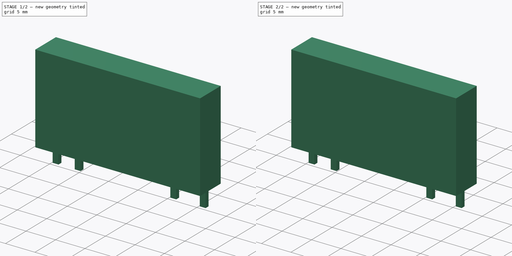
[diagram: build sequence overview — one tinted view per stage of 2, left to right]
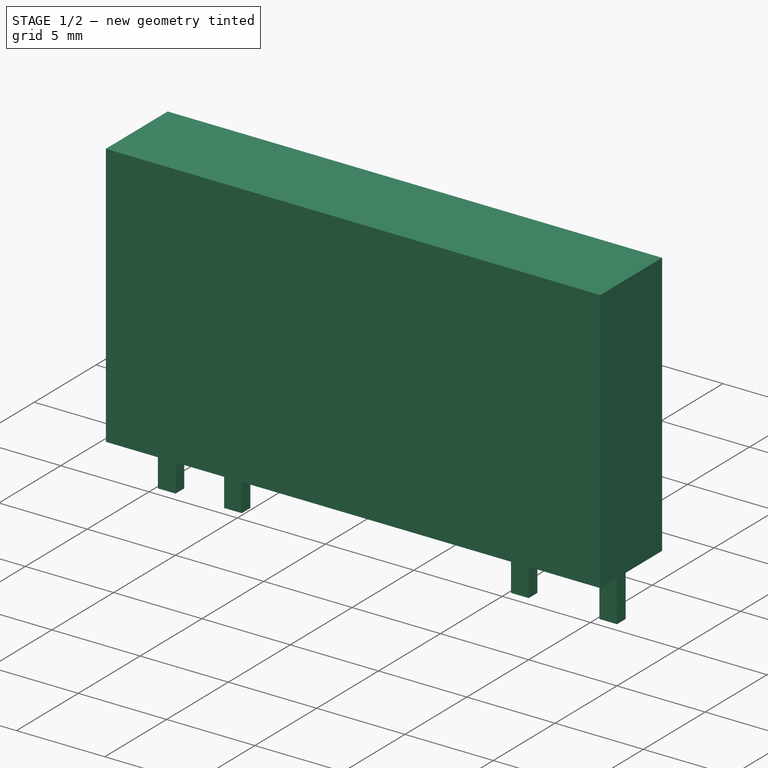
[diagram: stage 1 of 2 — iso view after this stage's code; geometry added in this stage tinted green]
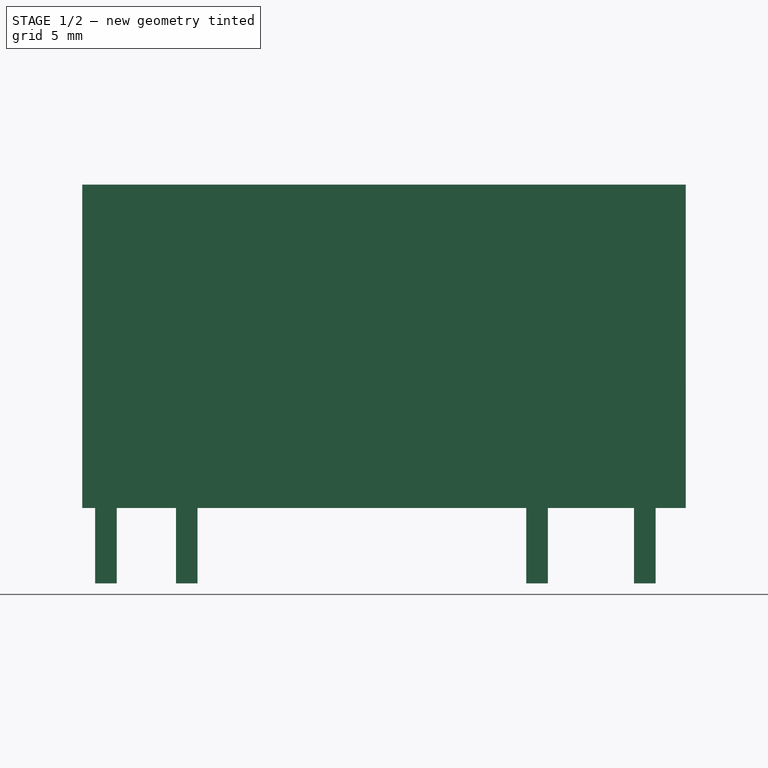
[diagram: stage 1 of 2 — front view after this stage's code; geometry added in this stage tinted green]
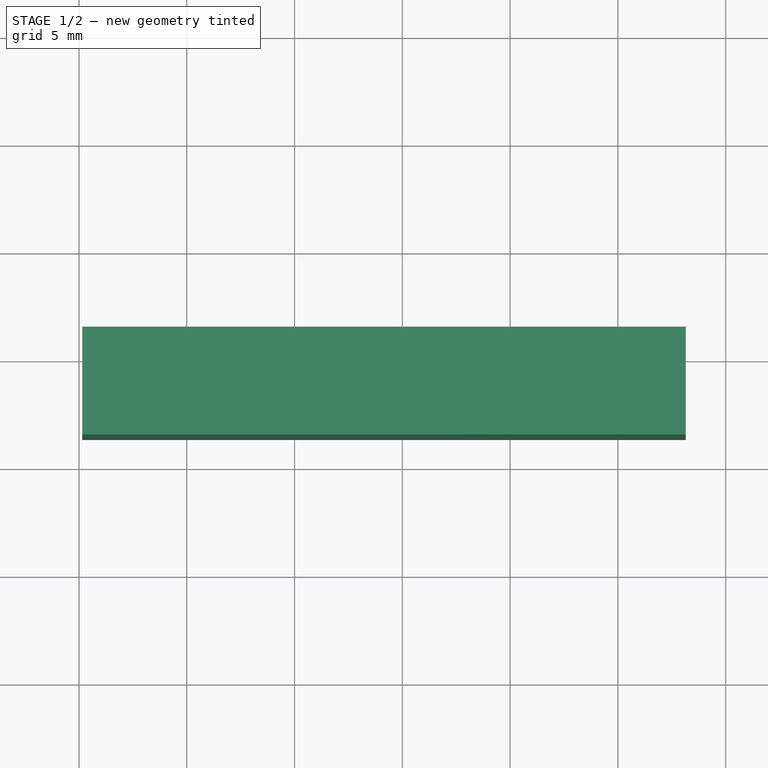
[diagram: stage 1 of 2 — top view after this stage's code; geometry added in this stage tinted green]
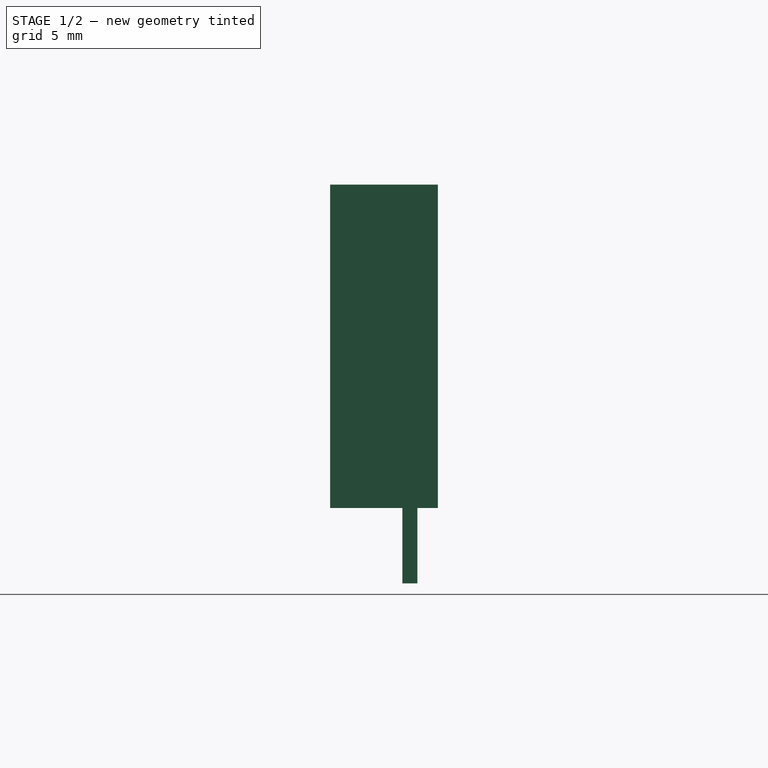
[diagram: stage 1 of 2 — right view after this stage's code; geometry added in this stage tinted green]
FCSTD DOCUMENT  (FreeCAD 0.16R6712 (Git))
Label: Finder_34.81
License: All rights reserved
LicenseURL: http://en.wikipedia.org/wiki/All_rights_reserved
objects: Part::Feature×3, Sketcher::SketchObject×2, PartDesign::Pad×2, App::DocumentObjectGroup×1, Part::MultiFuse×1
note: 10 computed .brp shape members not serialized (recipe doc carries the construction recipe); baked Part::Feature solids carry a one-line shape summary decoded from their .brp

FEATURE [Sketcher::SketchObject] Sketch
  Placement = pos=(-3.75,0,0.5) rot=(0,0,1;0rad)
  sketch-geometry (25):
    g0: LineSegment StartX=-0.5 StartY=0.35 StartZ=0 EndX=0.5 EndY=0.35 EndZ=0
    g1: LineSegment StartX=0.5 StartY=0.35 StartZ=0 EndX=0.5 EndY=-0.35 EndZ=0
    g2: LineSegment StartX=0.5 StartY=-0.35 StartZ=0 EndX=-0.5 EndY=-0.35 EndZ=0
    g3: LineSegment StartX=-0.5 StartY=-0.35 StartZ=0 EndX=-0.5 EndY=0.35 EndZ=0
    g4: LineSegment StartX=3.25 StartY=0.35 StartZ=0 EndX=4.25 EndY=0.35 EndZ=0
    g5: LineSegment StartX=4.25 StartY=0.35 StartZ=0 EndX=4.25 EndY=-0.35 EndZ=0
    g6: LineSegment StartX=4.25 StartY=-0.35 StartZ=0 EndX=3.25 EndY=-0.35 EndZ=0
    g7: LineSegment StartX=3.25 StartY=-0.35 StartZ=0 EndX=3.25 EndY=0.35 EndZ=0
    g8: LineSegment StartX=19.5 StartY=0.35 StartZ=0 EndX=20.5 EndY=0.35 EndZ=0
    g9: LineSegment StartX=20.5 StartY=0.35 StartZ=0 EndX=20.5 EndY=-0.35 EndZ=0
    g10: LineSegment StartX=20.5 StartY=-0.35 StartZ=0 EndX=19.5 EndY=-0.35 EndZ=0
    g11: LineSegment StartX=19.5 StartY=-0.35 StartZ=0 EndX=19.5 EndY=0.35 EndZ=0
    g12: LineSegment StartX=24.5 StartY=0.35 StartZ=0 EndX=25.5 EndY=0.35 EndZ=0
    g13: LineSegment StartX=25.5 StartY=0.35 StartZ=0 EndX=25.5 EndY=-0.35 EndZ=0
    g14: LineSegment StartX=25.5 StartY=-0.35 StartZ=0 EndX=24.5 EndY=-0.35 EndZ=0
    g15: LineSegment StartX=24.5 StartY=-0.35 StartZ=0 EndX=24.5 EndY=0.35 EndZ=0
    g16: LineSegment [constr] StartX=-0.5 StartY=0 StartZ=0 EndX=0.5 EndY=0 EndZ=0
    g17: LineSegment [constr] StartX=0 StartY=0.35 StartZ=0 EndX=0 EndY=-0.35 EndZ=0
    g18: LineSegment [constr] StartX=0 StartY=0.35 StartZ=0 EndX=3.75 EndY=0.35 EndZ=0
    g19: LineSegment [constr] StartX=20 StartY=0.35 StartZ=0 EndX=25 EndY=0.35 EndZ=0
    g20: LineSegment [constr] StartX=3.75 StartY=0.35 StartZ=0 EndX=3.75 EndY=-0.35 EndZ=0
    g21: GeomPoint [constr] X=19.5 Y=0 Z=0
    g22: LineSegment [constr] StartX=20 StartY=0.35 StartZ=0 EndX=20 EndY=-0.35 EndZ=0
    g23: GeomPoint [constr] X=20 Y=0 Z=0
    g24: LineSegment [constr] StartX=20 StartY=0 StartZ=0 EndX=3.75 EndY=0 EndZ=0
  constraints (73):
    c: Coincident(g0,g1)
    c: Coincident(g1,g2)
    c: Coincident(g2,g3)
    c: Coincident(g3,g0)
    c: Horizontal(g0)
    c: Horizontal(g2)
    c: Vertical(g1)
    c: Vertical(g3)
    c: Coincident(g4,g5)
    c: Coincident(g5,g6)
    c: Coincident(g6,g7)
    c: Coincident(g7,g4)
    c: Horizontal(g4)
    c: Horizontal(g6)
    c: Vertical(g5)
    c: Vertical(g7)
    c: Coincident(g8,g9)
    c: Coincident(g9,g10)
    c: Coincident(g10,g11)
    c: Coincident(g11,g8)
    c: Horizontal(g8)
    c: Horizontal(g10)
    c: Vertical(g9)
    c: Vertical(g11)
    c: Coincident(g12,g13)
    c: Coincident(g13,g14)
    c: Coincident(g14,g15)
    c: Coincident(g15,g12)
    c: Horizontal(g12)
    c: Horizontal(g14)
    c: Vertical(g13)
    c: Vertical(g15)
    c: PointOnObject(g16,g3)
    c: PointOnObject(g16,g1)
    c: Horizontal(g16)
    c: PointOnObject(g17,g2)
    c: Vertical(g17)
    c: PointOnObject(g-1,g17)
    c: PointOnObject(g-1,g16)
    c: Symmetric(g3,g3,g16)
    c: Symmetric(g0,g0,g17)
    c: DistanceX(g0,g0) = 1
    c: DistanceY(g3,g3) = 0.7
    c: Equal(g7,g1)
    c: Equal(g6,g2)
    c: Coincident(g18,g17)
    c: Horizontal(g18)
    c: Symmetric(g4,g4,g18)
    c: DistanceX(g18,g18) = 3.75
    c: Equal(g8,g12)
    c: Equal(g9,g13)
    c: PointOnObject(g19,g12)
    c: Horizontal(g19)
    c: Symmetric(g12,g12,g19)
    c: DistanceX(g19,g19) = 5
    c: Coincident(g20,g18)
    c: Vertical(g20)
    c: PointOnObject(g20,g6)
    c: DistanceY(g11,g11) = 0.7
    c: DistanceX(g10,g10) = 1
    c: PointOnObject(g21,g11)
    c: Symmetric(g11,g11,g21)
    c: PointOnObject(g21,g-1)
    c: Coincident(g22,g19)
    c: PointOnObject(g22,g10)
    c: Vertical(g22)
    c: PointOnObject(g23,g22)
    c: PointOnObject(g23,g-1)
    c: Coincident(g24,g23)
    c: PointOnObject(g24,g20)
    c: Horizontal(g24)
    c: DistanceX(g24,g24) = 16.25
    c: Symmetric(g8,g8,g19)
FEATURE [Part::Feature] FusionAxisZ1  label="Z"
  shape: bbox 0.8 x 0.8 x 14 mm, 8 faces (baked)
FEATURE [Part::Feature] FusionAxisY1  label="Y"
  Placement = pos=(0,0,0.05) rot=(-1,0,0;1.5708rad)
  shape: bbox 0.8 x 14 x 0.8 mm, 8 faces (baked)
FEATURE [Part::Feature] FusionAxisX1  label="X"
  Placement = pos=(0,-0.05,0) rot=(0,1,0;1.5708rad)
  shape: bbox 14 x 0.8 x 0.8 mm, 8 faces (baked)
FEATURE [App::DocumentObjectGroup] axis
  Group = -> [FusionAxisZ1,FusionAxisY1,FusionAxisX1]
FEATURE [PartDesign::Pad] Pad
  Length = 4
  Length2 = 100
  Placement = pos=(-3.75,0,0.5) rot=(0,0,1;0rad)
  Reversed = true
  Sketch = -> Sketch
  Type = 0
FEATURE [Sketcher::SketchObject] Sketch001
  Placement = pos=(-3.75,0,0) rot=(0,0,1;0rad)
  sketch-geometry (4):
    g0: LineSegment StartX=-1.1 StartY=1.3 StartZ=0 EndX=26.9 EndY=1.3 EndZ=0
    g1: LineSegment StartX=26.9 StartY=1.3 StartZ=0 EndX=26.9 EndY=-3.7 EndZ=0
    g2: LineSegment StartX=26.9 StartY=-3.7 StartZ=0 EndX=-1.1 EndY=-3.7 EndZ=0
    g3: LineSegment StartX=-1.1 StartY=-3.7 StartZ=0 EndX=-1.1 EndY=1.3 EndZ=0
  constraints (12):
    c: Coincident(g0,g1)
    c: Coincident(g1,g2)
    c: Coincident(g2,g3)
    c: Coincident(g3,g0)
    c: Horizontal(g0)
    c: Horizontal(g2)
    c: Vertical(g1)
    c: Vertical(g3)
    c: DistanceX(g2,g2) = 28
    c: DistanceY(g1,g1) = 5
    c: DistanceX(g0,g-1) = 1.1
    c: DistanceY(g-1,g0) = 1.3
FEATURE [PartDesign::Pad] Pad001
  Length = 15
  Length2 = 100
  Placement = pos=(-3.75,0,0) rot=(0,0,1;0rad)
  Sketch = -> Sketch001
  Type = 0
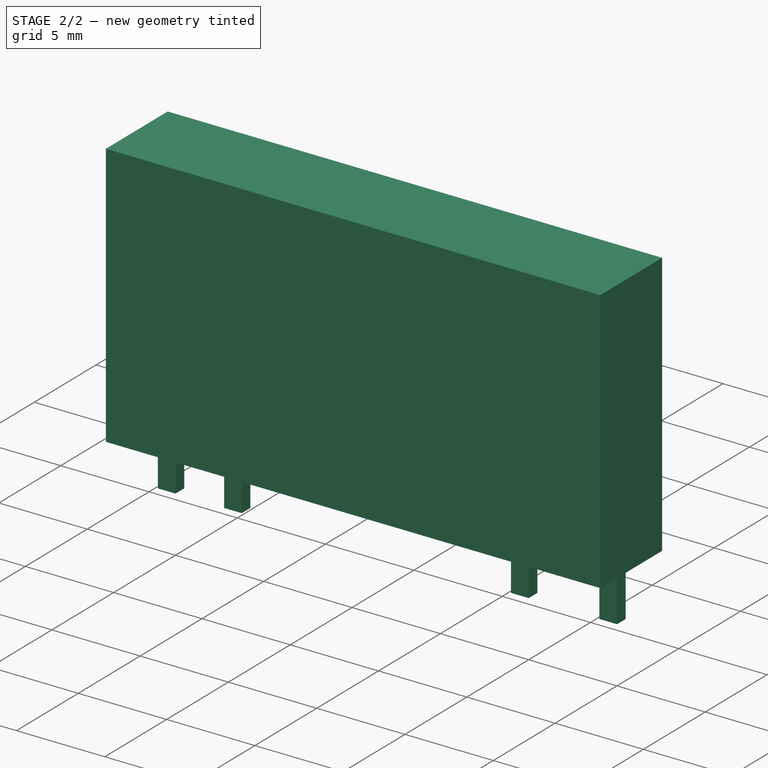
[diagram: stage 2 of 2 — iso view after this stage's code; geometry added in this stage tinted green]
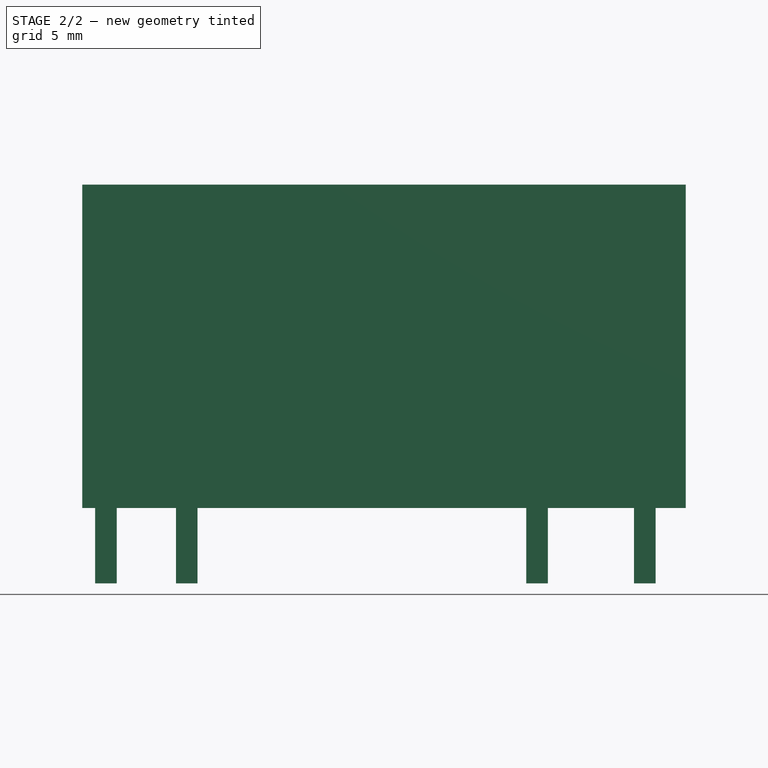
[diagram: stage 2 of 2 — front view after this stage's code; geometry added in this stage tinted green]
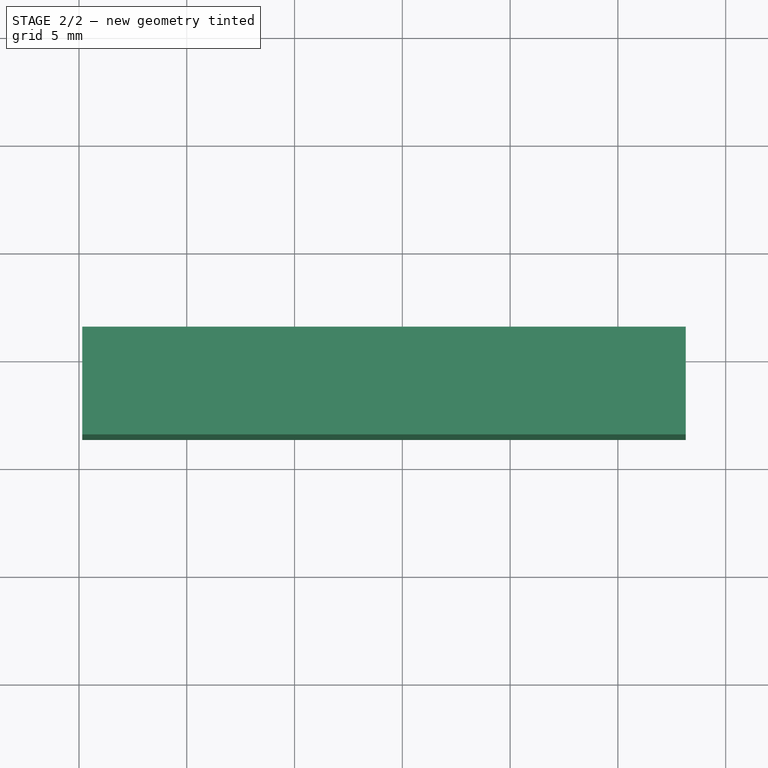
[diagram: stage 2 of 2 — top view after this stage's code; geometry added in this stage tinted green]
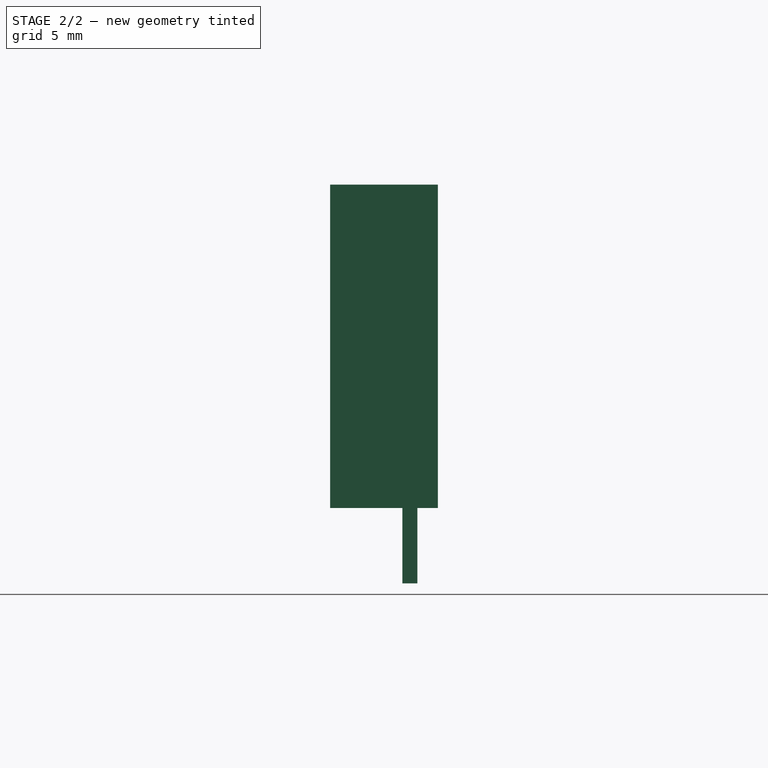
[diagram: stage 2 of 2 — right view after this stage's code; geometry added in this stage tinted green]
FEATURE [Part::MultiFuse] Pad001_mp_cp  label="Finder_34.81"
  Shapes = -> [Pad001,Pad]
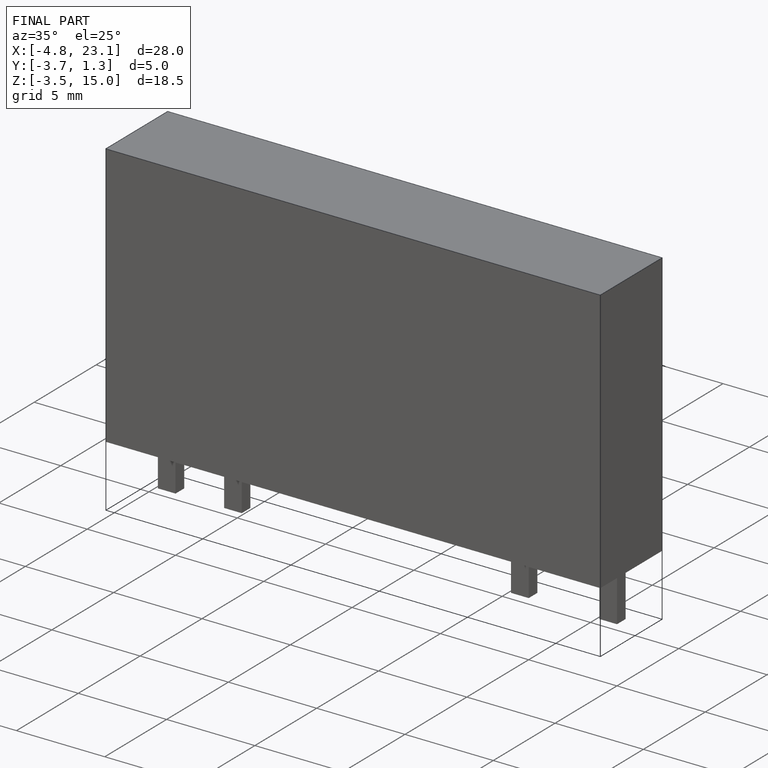
[diagram: finished part — iso view with bounding-box wireframe]
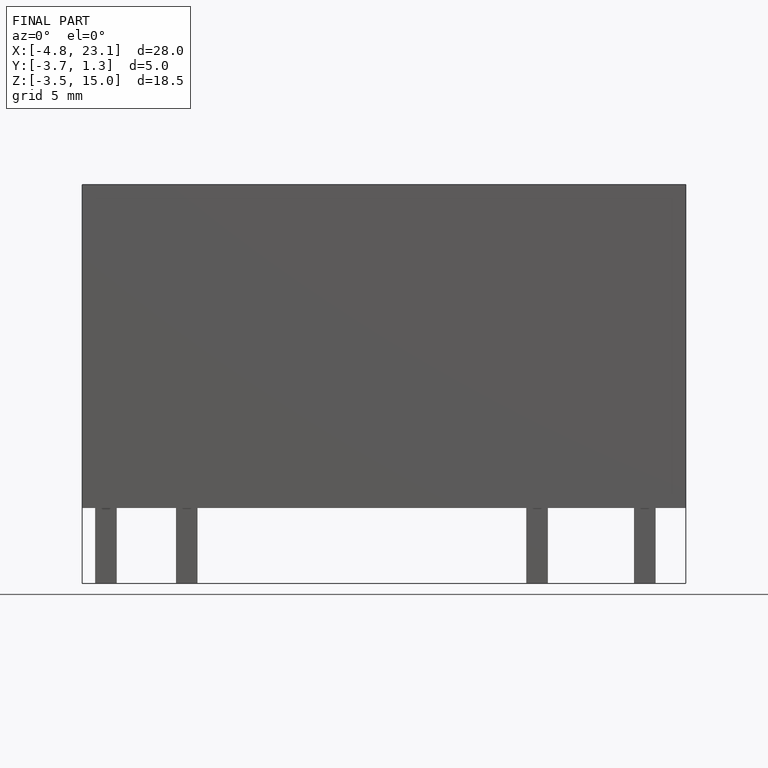
[diagram: finished part — front view with bounding-box wireframe]
